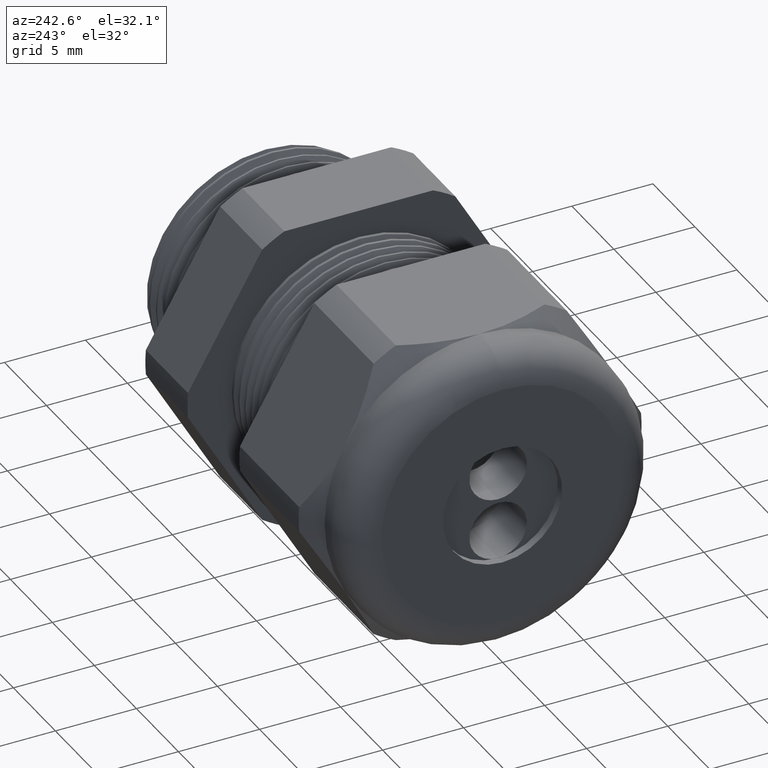
[diagram: clean part render]
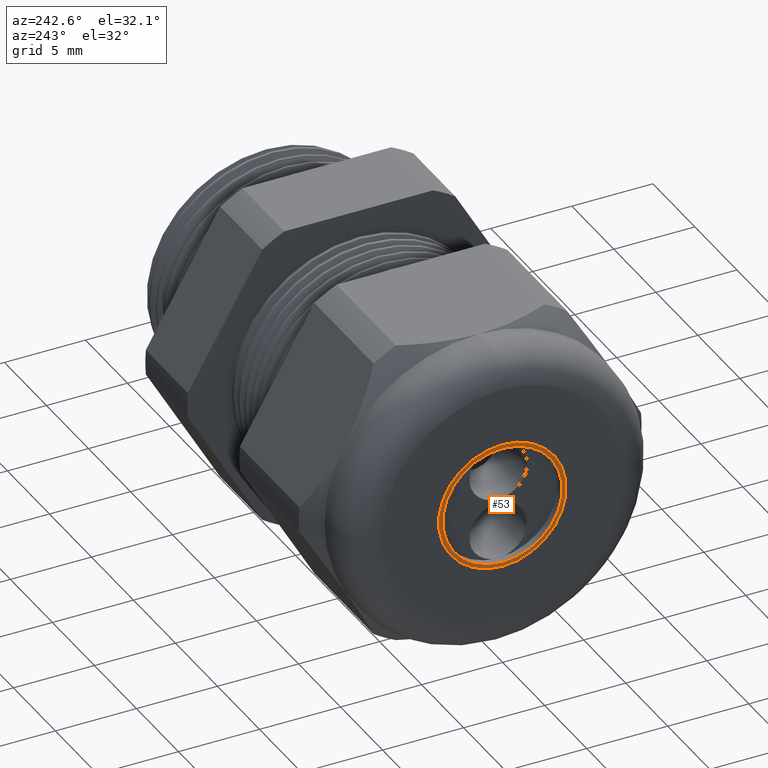
[diagram: same view with one face highlighted and labeled with its STEP entity id]
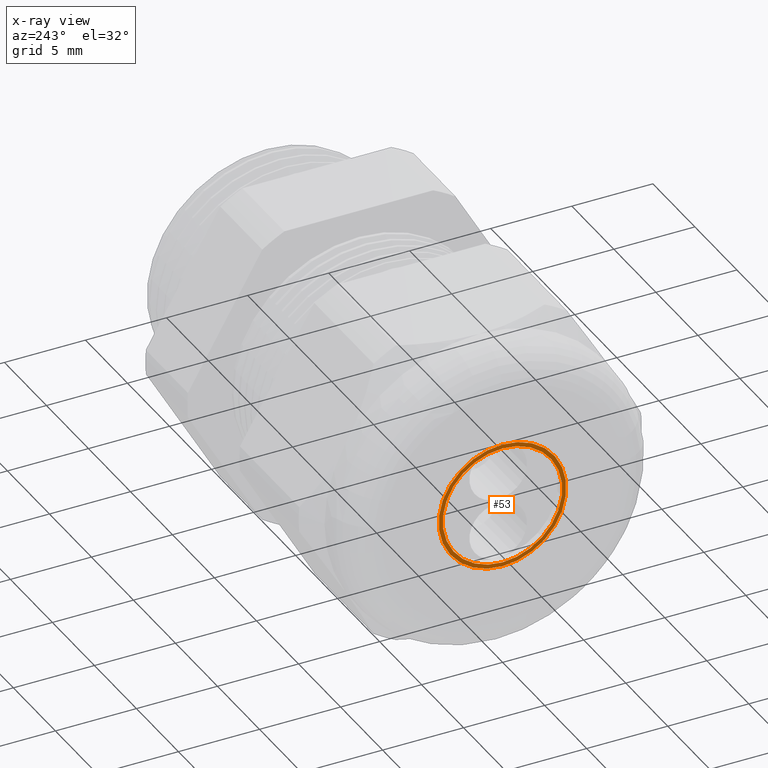
[diagram: x-ray of the same camera — body ghosted, the highlighted face saturated]
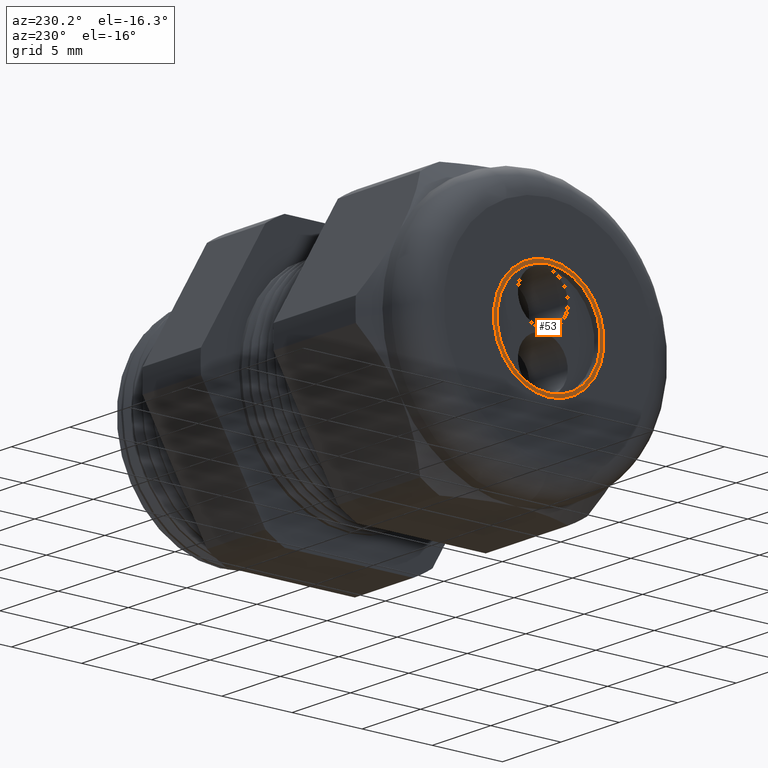
[diagram: same view with one face highlighted and labeled with its STEP entity id]
A machine part, auxiliary view. The second image highlights one B-rep face of the part: STEP entity #53.
The next image is the same camera in x-ray: the body ghosted, the highlighted face saturated — about 0% of this face is hidden behind the body in this view.
A second angle (auxiliary view) of the same face is appended — the face is thin or edge-on in the first view.
In plain terms, the highlighted planar face has unit normal (-1, 0, 0).
Its self-contained STEP definition (entity closure, byte-faithful):
#43 = ORIENTED_EDGE ( 'NONE', *, *, #114, .F. ) ;
#44 = EDGE_LOOP ( 'NONE', ( #43, #115 ) ) ;
#53 = ADVANCED_FACE ( 'NONE', ( #1091, #1090 ), #1089, .T. ) ;
#89 = VERTEX_POINT ( 'NONE', #1140 ) ;
#91 = EDGE_CURVE ( 'NONE', #89, #92, #1204, .T. ) ;
#92 = VERTEX_POINT ( 'NONE', #1199 ) ;
#114 = EDGE_CURVE ( 'NONE', #92, #89, #1231, .T. ) ;
#115 = ORIENTED_EDGE ( 'NONE', *, *, #91, .F. ) ;
#116 = EDGE_LOOP ( 'NONE', ( #117, #118 ) ) ;
#117 = ORIENTED_EDGE ( 'NONE', *, *, #3874, .T. ) ;
#118 = ORIENTED_EDGE ( 'NONE', *, *, #138, .T. ) ;
#138 = EDGE_CURVE ( 'NONE', #3879, #3873, #1260, .T. ) ;
#1085 = DIRECTION ( 'NONE',  ( 0.0000000000000000000, 0.0000000000000000000, 1.000000000000000000 ) ) ;
#1086 = DIRECTION ( 'NONE',  ( -1.000000000000000000, 0.0000000000000000000, 0.0000000000000000000 ) ) ;
#1087 = CARTESIAN_POINT ( 'NONE',  ( -1.179999999999999900, 0.0000000000000000000, 0.0000000000000000000 ) ) ;
#1088 = AXIS2_PLACEMENT_3D ( 'NONE', #1087, #1086, #1085 ) ;
#1089 = PLANE ( 'NONE',  #1088 ) ;
#1090 = FACE_OUTER_BOUND ( 'NONE', #116, .T. ) ;
#1091 = FACE_BOUND ( 'NONE', #44, .T. ) ;
#1140 = CARTESIAN_POINT ( 'NONE',  ( -1.179999999999999900, 1.775737858763661600E-017, -0.1449999999999999600 ) ) ;
#1199 = CARTESIAN_POINT ( 'NONE',  ( -1.179999999999999900, 0.0000000000000000000, 0.1449999999999999600 ) ) ;
#1200 = DIRECTION ( 'NONE',  ( 0.0000000000000000000, 0.0000000000000000000, 1.000000000000000000 ) ) ;
#1201 = DIRECTION ( 'NONE',  ( -1.000000000000000000, 0.0000000000000000000, 0.0000000000000000000 ) ) ;
#1202 = CARTESIAN_POINT ( 'NONE',  ( -1.179999999999999900, 0.0000000000000000000, 0.0000000000000000000 ) ) ;
#1203 = AXIS2_PLACEMENT_3D ( 'NONE', #1202, #1201, #1200 ) ;
#1204 = CIRCLE ( 'NONE', #1203, 0.1449999999999999600 ) ;
#1227 = DIRECTION ( 'NONE',  ( 0.0000000000000000000, 0.0000000000000000000, 1.000000000000000000 ) ) ;
#1228 = DIRECTION ( 'NONE',  ( -1.000000000000000000, 0.0000000000000000000, 0.0000000000000000000 ) ) ;
#1229 = CARTESIAN_POINT ( 'NONE',  ( -1.179999999999999900, 0.0000000000000000000, 0.0000000000000000000 ) ) ;
#1230 = AXIS2_PLACEMENT_3D ( 'NONE', #1229, #1228, #1227 ) ;
#1231 = CIRCLE ( 'NONE', #1230, 0.1449999999999999600 ) ;
#1256 = DIRECTION ( 'NONE',  ( 0.0000000000000000000, 0.0000000000000000000, 1.000000000000000000 ) ) ;
#1257 = DIRECTION ( 'NONE',  ( -1.000000000000000000, 0.0000000000000000000, 0.0000000000000000000 ) ) ;
#1258 = CARTESIAN_POINT ( 'NONE',  ( -1.179999999999999900, 0.0000000000000000000, 0.0000000000000000000 ) ) ;
#1259 = AXIS2_PLACEMENT_3D ( 'NONE', #1258, #1257, #1256 ) ;
#1260 = CIRCLE ( 'NONE', #1259, 0.1550000000000000000 ) ;
#3383 = DIRECTION ( 'NONE',  ( 0.0000000000000000000, 0.0000000000000000000, 1.000000000000000000 ) ) ;
#3384 = DIRECTION ( 'NONE',  ( -1.000000000000000000, 0.0000000000000000000, 0.0000000000000000000 ) ) ;
#3385 = CARTESIAN_POINT ( 'NONE',  ( -1.179999999999999900, 0.0000000000000000000, 0.0000000000000000000 ) ) ;
#3386 = AXIS2_PLACEMENT_3D ( 'NONE', #3385, #3384, #3383 ) ;
#3387 = CIRCLE ( 'NONE', #3386, 0.1550000000000000000 ) ;
#3389 = CARTESIAN_POINT ( 'NONE',  ( -1.179999999999999900, 0.0000000000000000000, 0.1550000000000000000 ) ) ;
#3441 = CARTESIAN_POINT ( 'NONE',  ( -1.179999999999999900, 1.898202538678397000E-017, -0.1550000000000000000 ) ) ;
#3873 = VERTEX_POINT ( 'NONE', #3389 ) ;
#3874 = EDGE_CURVE ( 'NONE', #3873, #3879, #3387, .T. ) ;
#3879 = VERTEX_POINT ( 'NONE', #3441 ) ;